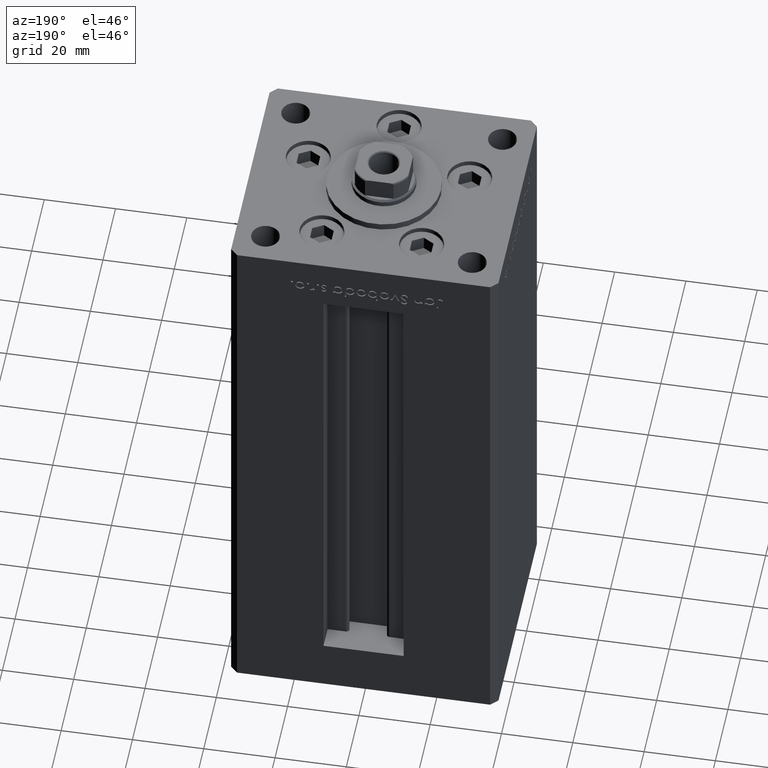
[diagram: clean part render]
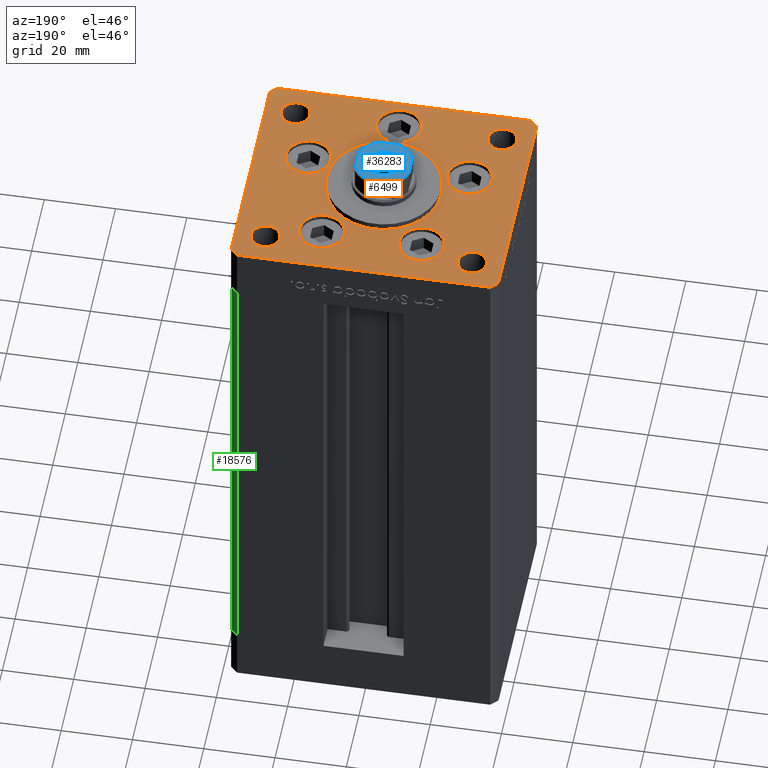
[diagram: same view with three faces highlighted in distinct colors, each labeled with its STEP entity id]
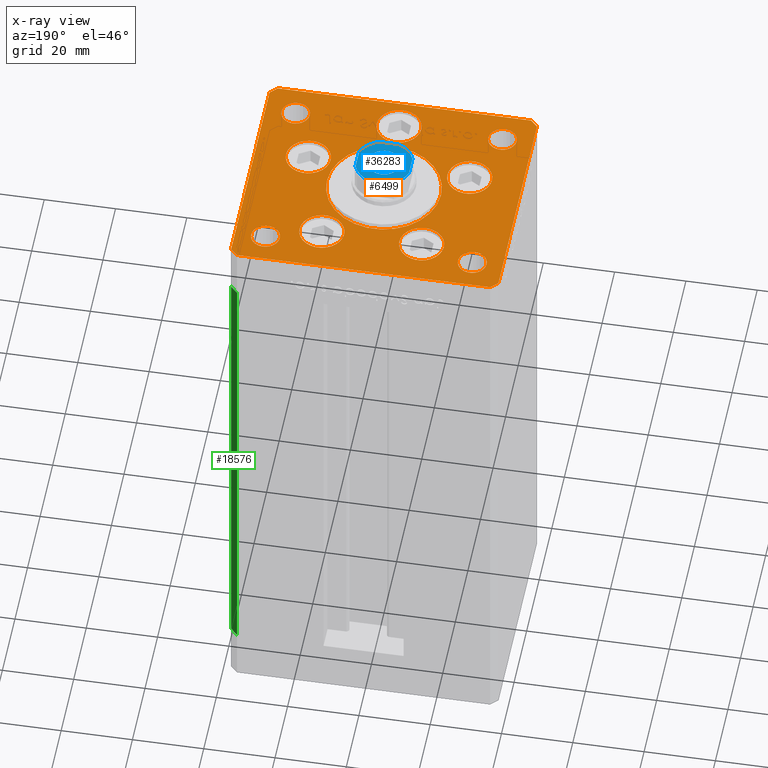
[diagram: x-ray of the same camera — body ghosted, the three highlighted faces saturated]
A machine part, auxiliary view with three faces highlighted in distinct colors.
The next image is the same camera in x-ray (body ghosted, the three faces saturated) — at least one of them is partly hidden behind the body in this view.
Their STEP definitions:

[orange] entity #6499 — the highlighted planar face has unit normal (0, 0, 1).
#27 = VERTEX_POINT ( 'NONE', #15111 ) ;
#93 = VECTOR ( 'NONE', #29604, 1000.000000000000000 ) ;
#391 = LINE ( 'NONE', #7535, #16685 ) ;
#488 = VERTEX_POINT ( 'NONE', #19643 ) ;
#591 = AXIS2_PLACEMENT_3D ( 'NONE', #2784, #10936, #23082 ) ;
#667 = VERTEX_POINT ( 'NONE', #9581 ) ;
#778 = DIRECTION ( 'NONE',  ( 1.000000000000000000, 0.000000000000000000, 0.000000000000000000 ) ) ;
#876 = CIRCLE ( 'NONE', #16044, 3.999999999999996447 ) ;
#1000 = VECTOR ( 'NONE', #35911, 1000.000000000000000 ) ;
#1281 = DIRECTION ( 'NONE',  ( -1.000000000000000000, 0.000000000000000000, 0.000000000000000000 ) ) ;
#1387 = CIRCLE ( 'NONE', #41013, 3.999999999999996447 ) ;
#1836 = CARTESIAN_POINT ( 'NONE',  ( 25.00000000000000355, -23.99999999999999645, 0.000000000000000000 ) ) ;
#2205 = EDGE_CURVE ( 'NONE', #25152, #48263, #49024, .T. ) ;
#2562 = AXIS2_PLACEMENT_3D ( 'NONE', #45302, #33430, #5196 ) ;
#2658 = CARTESIAN_POINT ( 'NONE',  ( -29.00000000000000000, -23.99999999999999645, 0.000000000000000000 ) ) ;
#2776 = FACE_BOUND ( 'NONE', #46664, .T. ) ;
#2784 = CARTESIAN_POINT ( 'NONE',  ( 0.000000000000000000, -24.00000000000001066, 0.000000000000000000 ) ) ;
#2817 = EDGE_CURVE ( 'NONE', #49685, #41457, #33553, .T. ) ;
#3083 = DIRECTION ( 'NONE',  ( 0.000000000000000000, 0.000000000000000000, 1.000000000000000000 ) ) ;
#3115 = EDGE_LOOP ( 'NONE', ( #9107, #40494 ) ) ;
#3261 = DIRECTION ( 'NONE',  ( 1.000000000000000000, 0.000000000000000000, 0.000000000000000000 ) ) ;
#3293 = DIRECTION ( 'NONE',  ( -0.000000000000000000, -0.000000000000000000, -1.000000000000000000 ) ) ;
#3425 = DIRECTION ( 'NONE',  ( 1.000000000000000000, 0.000000000000000000, 0.000000000000000000 ) ) ;
#3450 = CIRCLE ( 'NONE', #42213, 6.250000000000000000 ) ;
#3474 = EDGE_CURVE ( 'NONE', #37776, #27, #34388, .T. ) ;
#3550 = DIRECTION ( 'NONE',  ( 1.000000000000000000, 0.000000000000000000, 0.000000000000000000 ) ) ;
#3552 = ORIENTED_EDGE ( 'NONE', *, *, #36244, .T. ) ;
#4156 = AXIS2_PLACEMENT_3D ( 'NONE', #31755, #32529, #7993 ) ;
#4193 = DIRECTION ( 'NONE',  ( 0.000000000000000000, 0.000000000000000000, 1.000000000000000000 ) ) ;
#4274 = CARTESIAN_POINT ( 'NONE',  ( 29.00000000000000000, 24.00000000000000355, 0.000000000000000000 ) ) ;
#4307 = AXIS2_PLACEMENT_3D ( 'NONE', #35812, #3083, #6786 ) ;
#4780 = DIRECTION ( 'NONE',  ( 0.000000000000000000, 0.000000000000000000, 1.000000000000000000 ) ) ;
#5003 = EDGE_CURVE ( 'NONE', #18693, #26562, #391, .T. ) ;
#5165 = ORIENTED_EDGE ( 'NONE', *, *, #19984, .F. ) ;
#5196 = DIRECTION ( 'NONE',  ( 1.000000000000000000, 0.000000000000000000, 0.000000000000000000 ) ) ;
#5300 = VERTEX_POINT ( 'NONE', #21823 ) ;
#5362 = LINE ( 'NONE', #21448, #31968 ) ;
#5569 = CARTESIAN_POINT ( 'NONE',  ( -16.00000000000000355, -6.938893903907228378E-15, 0.000000000000000000 ) ) ;
#5627 = DIRECTION ( 'NONE',  ( -1.000000000000000000, 0.000000000000000000, 0.000000000000000000 ) ) ;
#5806 = DIRECTION ( 'NONE',  ( -1.000000000000000000, 0.000000000000000000, 0.000000000000000000 ) ) ;
#5921 = CARTESIAN_POINT ( 'NONE',  ( -33.00000000000000000, 24.00000000000000711, 0.000000000000000000 ) ) ;
#6499 = ADVANCED_FACE ( 'NONE', ( #11190, #27299, #6725, #2776, #27038, #39696, #31531, #51312, #51049, #31269, #14638 ), #14892, .T. ) ;
#6725 = FACE_BOUND ( 'NONE', #3115, .T. ) ;
#6786 = DIRECTION ( 'NONE',  ( 1.000000000000000000, 0.000000000000000000, 0.000000000000000000 ) ) ;
#6887 = AXIS2_PLACEMENT_3D ( 'NONE', #32038, #3293, #11702 ) ;
#6906 = EDGE_LOOP ( 'NONE', ( #44461, #35221 ) ) ;
#7213 = DIRECTION ( 'NONE',  ( 0.000000000000000000, 0.000000000000000000, 1.000000000000000000 ) ) ;
#7314 = DIRECTION ( 'NONE',  ( 1.000000000000000000, 0.000000000000000000, 0.000000000000000000 ) ) ;
#7535 = CARTESIAN_POINT ( 'NONE',  ( -35.50000000000000711, 32.49999999999997868, 0.000000000000000000 ) ) ;
#7617 = EDGE_CURVE ( 'NONE', #488, #49265, #5362, .T. ) ;
#7634 = CARTESIAN_POINT ( 'NONE',  ( 13.99106857963324124, 19.50000000000000000, 0.000000000000000000 ) ) ;
#7758 = LINE ( 'NONE', #23851, #9996 ) ;
#7969 = EDGE_CURVE ( 'NONE', #41457, #49685, #43759, .T. ) ;
#7993 = DIRECTION ( 'NONE',  ( 1.000000000000000000, 0.000000000000000000, 0.000000000000000000 ) ) ;
#8133 = EDGE_LOOP ( 'NONE', ( #48205, #34421 ) ) ;
#8680 = ORIENTED_EDGE ( 'NONE', *, *, #21080, .F. ) ;
#9107 = ORIENTED_EDGE ( 'NONE', *, *, #16175, .F. ) ;
#9152 = DIRECTION ( 'NONE',  ( 2.275047181608926165E-16, -1.000000000000000000, 0.000000000000000000 ) ) ;
#9581 = CARTESIAN_POINT ( 'NONE',  ( 7.741068579633241242, 19.50000000000000000, 0.000000000000000000 ) ) ;
#9707 = CARTESIAN_POINT ( 'NONE',  ( -32.99999999999999289, -23.99999999999999645, 0.000000000000000000 ) ) ;
#9977 = DIRECTION ( 'NONE',  ( 1.000000000000000000, 0.000000000000000000, 0.000000000000000000 ) ) ;
#9989 = DIRECTION ( 'NONE',  ( 0.000000000000000000, 0.000000000000000000, 1.000000000000000000 ) ) ;
#9996 = VECTOR ( 'NONE', #48132, 1000.000000000000000 ) ;
#10720 = AXIS2_PLACEMENT_3D ( 'NONE', #34034, #9989, #21354 ) ;
#10936 = DIRECTION ( 'NONE',  ( 0.000000000000000000, 0.000000000000000000, 1.000000000000000000 ) ) ;
#11010 = AXIS2_PLACEMENT_3D ( 'NONE', #50880, #43477, #7314 ) ;
#11190 = FACE_BOUND ( 'NONE', #20277, .T. ) ;
#11412 = EDGE_CURVE ( 'NONE', #37694, #39415, #24341, .T. ) ;
#11437 = CARTESIAN_POINT ( 'NONE',  ( 16.00000000000000355, -4.979459025271462852E-15, 0.000000000000000000 ) ) ;
#11607 = AXIS2_PLACEMENT_3D ( 'NONE', #4274, #4780, #48594 ) ;
#11702 = DIRECTION ( 'NONE',  ( -1.000000000000000000, 0.000000000000000000, 0.000000000000000000 ) ) ;
#11917 = CIRCLE ( 'NONE', #6887, 4.000000000000000000 ) ;
#12106 = VERTEX_POINT ( 'NONE', #23581 ) ;
#12597 = LINE ( 'NONE', #29218, #23535 ) ;
#12845 = CARTESIAN_POINT ( 'NONE',  ( -37.50000000000000000, -30.50000000000004263, 0.000000000000000000 ) ) ;
#12849 = CARTESIAN_POINT ( 'NONE',  ( 37.50000000000000711, 30.50000000000001421, 0.000000000000000000 ) ) ;
#13217 = VERTEX_POINT ( 'NONE', #35028 ) ;
#13486 = CARTESIAN_POINT ( 'NONE',  ( 37.50000000000000711, -30.49999999999992895, 0.000000000000000000 ) ) ;
#13973 = DIRECTION ( 'NONE',  ( 1.000000000000000000, 0.000000000000000000, 0.000000000000000000 ) ) ;
#14065 = CIRCLE ( 'NONE', #18285, 4.000000000000000000 ) ;
#14638 = FACE_BOUND ( 'NONE', #52078, .T. ) ;
#14777 = VERTEX_POINT ( 'NONE', #9707 ) ;
#14870 = AXIS2_PLACEMENT_3D ( 'NONE', #29756, #18378, #26306 ) ;
#14892 = PLANE ( 'NONE',  #28563 ) ;
#15111 = CARTESIAN_POINT ( 'NONE',  ( 33.00000000000000000, 24.00000000000000355, 0.000000000000000000 ) ) ;
#15240 = CIRCLE ( 'NONE', #27037, 6.250000000000000000 ) ;
#15308 = EDGE_CURVE ( 'NONE', #23943, #46512, #46386, .T. ) ;
#15712 = EDGE_CURVE ( 'NONE', #22485, #14777, #876, .T. ) ;
#16044 = AXIS2_PLACEMENT_3D ( 'NONE', #21900, #22167, #13973 ) ;
#16175 = EDGE_CURVE ( 'NONE', #13217, #667, #19433, .T. ) ;
#16685 = VECTOR ( 'NONE', #24405, 1000.000000000000000 ) ;
#16791 = VERTEX_POINT ( 'NONE', #51702 ) ;
#16836 = EDGE_CURVE ( 'NONE', #667, #13217, #3450, .T. ) ;
#16847 = VECTOR ( 'NONE', #20503, 1000.000000000000000 ) ;
#17855 = ORIENTED_EDGE ( 'NONE', *, *, #46179, .T. ) ;
#18285 = AXIS2_PLACEMENT_3D ( 'NONE', #41963, #38010, #5806 ) ;
#18352 = AXIS2_PLACEMENT_3D ( 'NONE', #39311, #35369, #51712 ) ;
#18376 = ORIENTED_EDGE ( 'NONE', *, *, #40264, .T. ) ;
#18378 = DIRECTION ( 'NONE',  ( 0.000000000000000000, 0.000000000000000000, 1.000000000000000000 ) ) ;
#18693 = VERTEX_POINT ( 'NONE', #20359 ) ;
#19043 = AXIS2_PLACEMENT_3D ( 'NONE', #25301, #44845, #778 ) ;
#19433 = CIRCLE ( 'NONE', #4307, 6.250000000000000000 ) ;
#19643 = CARTESIAN_POINT ( 'NONE',  ( 35.50000000000001421, -32.49999999999992184, 0.000000000000000000 ) ) ;
#19790 = LINE ( 'NONE', #24015, #1000 ) ;
#19984 = EDGE_CURVE ( 'NONE', #40217, #22862, #40978, .T. ) ;
#20277 = EDGE_LOOP ( 'NONE', ( #37951, #5165 ) ) ;
#20336 = EDGE_LOOP ( 'NONE', ( #46112, #48721 ) ) ;
#20359 = CARTESIAN_POINT ( 'NONE',  ( -35.50000000000000711, 32.49999999999997868, 0.000000000000000000 ) ) ;
#20503 = DIRECTION ( 'NONE',  ( 0.7071067811865512365, -0.7071067811865439090, 0.000000000000000000 ) ) ;
#21062 = DIRECTION ( 'NONE',  ( 1.000000000000000000, 0.000000000000000000, 0.000000000000000000 ) ) ;
#21080 = EDGE_CURVE ( 'NONE', #14777, #22485, #1387, .T. ) ;
#21334 = CARTESIAN_POINT ( 'NONE',  ( 29.00000000000000355, -23.99999999999999645, 0.000000000000000000 ) ) ;
#21354 = DIRECTION ( 'NONE',  ( 1.000000000000000000, 0.000000000000000000, 0.000000000000000000 ) ) ;
#21448 = CARTESIAN_POINT ( 'NONE',  ( 35.50000000000001421, -32.49999999999992184, 0.000000000000000000 ) ) ;
#21720 = EDGE_CURVE ( 'NONE', #40592, #16791, #44403, .T. ) ;
#21749 = ORIENTED_EDGE ( 'NONE', *, *, #38914, .T. ) ;
#21823 = CARTESIAN_POINT ( 'NONE',  ( -37.50000000000000000, -30.50000000000004263, 0.000000000000000000 ) ) ;
#21900 = CARTESIAN_POINT ( 'NONE',  ( -29.00000000000000000, -23.99999999999999645, 0.000000000000000000 ) ) ;
#22167 = DIRECTION ( 'NONE',  ( 0.000000000000000000, 0.000000000000000000, 1.000000000000000000 ) ) ;
#22485 = VERTEX_POINT ( 'NONE', #51328 ) ;
#22862 = VERTEX_POINT ( 'NONE', #5569 ) ;
#23082 = DIRECTION ( 'NONE',  ( 1.000000000000000000, 0.000000000000000000, 0.000000000000000000 ) ) ;
#23336 = ORIENTED_EDGE ( 'NONE', *, *, #25138, .F. ) ;
#23535 = VECTOR ( 'NONE', #9152, 1000.000000000000000 ) ;
#23581 = CARTESIAN_POINT ( 'NONE',  ( -16.37741699796953299, -8.000000000000000000, 0.000000000000000000 ) ) ;
#23851 = CARTESIAN_POINT ( 'NONE',  ( -35.50000000000001421, -32.50000000000000711, 0.000000000000000000 ) ) ;
#23893 = EDGE_CURVE ( 'NONE', #49544, #12106, #46139, .T. ) ;
#23943 = VERTEX_POINT ( 'NONE', #50374 ) ;
#24015 = CARTESIAN_POINT ( 'NONE',  ( 35.50000000000000000, 32.49999999999999289, 0.000000000000000000 ) ) ;
#24341 = CIRCLE ( 'NONE', #4156, 6.250000000000001776 ) ;
#24405 = DIRECTION ( 'NONE',  ( -0.7071067811865524577, -0.7071067811865426878, 0.000000000000000000 ) ) ;
#24722 = VERTEX_POINT ( 'NONE', #1836 ) ;
#24772 = ORIENTED_EDGE ( 'NONE', *, *, #42726, .F. ) ;
#25022 = DIRECTION ( 'NONE',  ( 0.000000000000000000, 0.000000000000000000, 1.000000000000000000 ) ) ;
#25097 = CARTESIAN_POINT ( 'NONE',  ( -20.24106857963324302, 19.50000000000000000, 0.000000000000000000 ) ) ;
#25138 = EDGE_CURVE ( 'NONE', #12106, #49544, #26661, .T. ) ;
#25152 = VERTEX_POINT ( 'NONE', #50062 ) ;
#25301 = CARTESIAN_POINT ( 'NONE',  ( 0.000000000000000000, -6.938893903907228378E-15, 0.000000000000000000 ) ) ;
#25656 = EDGE_CURVE ( 'NONE', #46512, #23943, #14065, .T. ) ;
#26174 = AXIS2_PLACEMENT_3D ( 'NONE', #21334, #30577, #1281 ) ;
#26306 = DIRECTION ( 'NONE',  ( 1.000000000000000000, 0.000000000000000000, 0.000000000000000000 ) ) ;
#26466 = DIRECTION ( 'NONE',  ( 0.7071067811865463515, 0.7071067811865487940, 0.000000000000000000 ) ) ;
#26521 = CARTESIAN_POINT ( 'NONE',  ( -13.99106857963324124, 19.50000000000000000, 0.000000000000000000 ) ) ;
#26562 = VERTEX_POINT ( 'NONE', #29373 ) ;
#26661 = CIRCLE ( 'NONE', #14870, 6.250000000000001776 ) ;
#26763 = VECTOR ( 'NONE', #28962, 1000.000000000000000 ) ;
#26912 = DIRECTION ( 'NONE',  ( 0.000000000000000000, 0.000000000000000000, 1.000000000000000000 ) ) ;
#27037 = AXIS2_PLACEMENT_3D ( 'NONE', #50769, #7213, #3261 ) ;
#27038 = FACE_BOUND ( 'NONE', #20336, .T. ) ;
#27299 = FACE_BOUND ( 'NONE', #8133, .T. ) ;
#27843 = CARTESIAN_POINT ( 'NONE',  ( 28.87741699796953654, -8.000000000000000000, 0.000000000000000000 ) ) ;
#28563 = AXIS2_PLACEMENT_3D ( 'NONE', #31006, #34970, #3550 ) ;
#28728 = CIRCLE ( 'NONE', #11010, 16.00000000000000355 ) ;
#28962 = DIRECTION ( 'NONE',  ( -0.7071067811865524577, 0.7071067811865426878, 0.000000000000000000 ) ) ;
#29218 = CARTESIAN_POINT ( 'NONE',  ( -37.50000000000001421, 30.50000000000000000, 0.000000000000000000 ) ) ;
#29373 = CARTESIAN_POINT ( 'NONE',  ( -37.50000000000001421, 30.50000000000000000, 0.000000000000000000 ) ) ;
#29604 = DIRECTION ( 'NONE',  ( 0.000000000000000000, 1.000000000000000000, 0.000000000000000000 ) ) ;
#29756 = CARTESIAN_POINT ( 'NONE',  ( -22.62741699796953299, -8.000000000000000000, 0.000000000000000000 ) ) ;
#29880 = CARTESIAN_POINT ( 'NONE',  ( 33.00000000000000000, -23.99999999999999645, 0.000000000000000000 ) ) ;
#30053 = ORIENTED_EDGE ( 'NONE', *, *, #25656, .T. ) ;
#30577 = DIRECTION ( 'NONE',  ( -0.000000000000000000, -0.000000000000000000, -1.000000000000000000 ) ) ;
#31006 = CARTESIAN_POINT ( 'NONE',  ( 0.000000000000000000, 0.000000000000000000, 0.000000000000000000 ) ) ;
#31269 = FACE_OUTER_BOUND ( 'NONE', #36883, .T. ) ;
#31403 = DIRECTION ( 'NONE',  ( 1.000000000000000000, 0.000000000000000000, 0.000000000000000000 ) ) ;
#31531 = FACE_BOUND ( 'NONE', #40140, .T. ) ;
#31586 = EDGE_CURVE ( 'NONE', #33174, #488, #7758, .T. ) ;
#31755 = CARTESIAN_POINT ( 'NONE',  ( 22.62741699796953299, -8.000000000000000000, 0.000000000000000000 ) ) ;
#31968 = VECTOR ( 'NONE', #26466, 1000.000000000000000 ) ;
#32038 = CARTESIAN_POINT ( 'NONE',  ( 29.00000000000000355, -23.99999999999999645, 0.000000000000000000 ) ) ;
#32529 = DIRECTION ( 'NONE',  ( 0.000000000000000000, 0.000000000000000000, 1.000000000000000000 ) ) ;
#32930 = EDGE_CURVE ( 'NONE', #26562, #5300, #12597, .T. ) ;
#33174 = VERTEX_POINT ( 'NONE', #51618 ) ;
#33430 = DIRECTION ( 'NONE',  ( 0.000000000000000000, 0.000000000000000000, 1.000000000000000000 ) ) ;
#33553 = CIRCLE ( 'NONE', #18352, 6.250000000000000000 ) ;
#33802 = CARTESIAN_POINT ( 'NONE',  ( 6.250000000000000000, -24.00000000000001066, 0.000000000000000000 ) ) ;
#34034 = CARTESIAN_POINT ( 'NONE',  ( -22.62741699796953299, -8.000000000000000000, 0.000000000000000000 ) ) ;
#34388 = CIRCLE ( 'NONE', #11607, 4.000000000000000000 ) ;
#34421 = ORIENTED_EDGE ( 'NONE', *, *, #7969, .F. ) ;
#34572 = ORIENTED_EDGE ( 'NONE', *, *, #2205, .T. ) ;
#34970 = DIRECTION ( 'NONE',  ( -0.000000000000000000, 0.000000000000000000, 1.000000000000000000 ) ) ;
#35028 = CARTESIAN_POINT ( 'NONE',  ( 20.24106857963324302, 19.50000000000000000, 0.000000000000000000 ) ) ;
#35221 = ORIENTED_EDGE ( 'NONE', *, *, #3474, .F. ) ;
#35369 = DIRECTION ( 'NONE',  ( 0.000000000000000000, 0.000000000000000000, 1.000000000000000000 ) ) ;
#35801 = ORIENTED_EDGE ( 'NONE', *, *, #23893, .F. ) ;
#35812 = CARTESIAN_POINT ( 'NONE',  ( 13.99106857963324124, 19.50000000000000000, 0.000000000000000000 ) ) ;
#35911 = DIRECTION ( 'NONE',  ( -1.000000000000000000, -1.954618001100627573E-16, 0.000000000000000000 ) ) ;
#36244 = EDGE_CURVE ( 'NONE', #5300, #33174, #37400, .T. ) ;
#36298 = EDGE_CURVE ( 'NONE', #27, #37776, #37109, .T. ) ;
#36314 = AXIS2_PLACEMENT_3D ( 'NONE', #46144, #42201, #9977 ) ;
#36574 = ORIENTED_EDGE ( 'NONE', *, *, #7617, .T. ) ;
#36883 = EDGE_LOOP ( 'NONE', ( #3552, #44262, #36574, #21749, #34572, #17855, #49747, #44725 ) ) ;
#37109 = CIRCLE ( 'NONE', #2562, 4.000000000000000000 ) ;
#37132 = AXIS2_PLACEMENT_3D ( 'NONE', #38109, #37327, #5627 ) ;
#37168 = ORIENTED_EDGE ( 'NONE', *, *, #38269, .T. ) ;
#37327 = DIRECTION ( 'NONE',  ( -0.000000000000000000, -0.000000000000000000, -1.000000000000000000 ) ) ;
#37400 = LINE ( 'NONE', #12845, #16847 ) ;
#37694 = VERTEX_POINT ( 'NONE', #50803 ) ;
#37776 = VERTEX_POINT ( 'NONE', #40222 ) ;
#37951 = ORIENTED_EDGE ( 'NONE', *, *, #38381, .F. ) ;
#38009 = CIRCLE ( 'NONE', #36314, 6.250000000000001776 ) ;
#38010 = DIRECTION ( 'NONE',  ( -0.000000000000000000, -0.000000000000000000, -1.000000000000000000 ) ) ;
#38109 = CARTESIAN_POINT ( 'NONE',  ( -29.00000000000000000, 24.00000000000000711, 0.000000000000000000 ) ) ;
#38269 = EDGE_CURVE ( 'NONE', #51767, #24722, #42190, .T. ) ;
#38381 = EDGE_CURVE ( 'NONE', #22862, #40217, #28728, .T. ) ;
#38577 = CARTESIAN_POINT ( 'NONE',  ( -28.87741699796953654, -8.000000000000000000, 0.000000000000000000 ) ) ;
#38601 = AXIS2_PLACEMENT_3D ( 'NONE', #26521, #25022, #21062 ) ;
#38914 = EDGE_CURVE ( 'NONE', #49265, #25152, #49384, .T. ) ;
#39311 = CARTESIAN_POINT ( 'NONE',  ( -13.99106857963324124, 19.50000000000000000, 0.000000000000000000 ) ) ;
#39415 = VERTEX_POINT ( 'NONE', #27843 ) ;
#39614 = EDGE_CURVE ( 'NONE', #16791, #40592, #15240, .T. ) ;
#39696 = FACE_BOUND ( 'NONE', #44211, .T. ) ;
#39998 = ORIENTED_EDGE ( 'NONE', *, *, #15308, .T. ) ;
#40140 = EDGE_LOOP ( 'NONE', ( #39998, #30053 ) ) ;
#40217 = VERTEX_POINT ( 'NONE', #11437 ) ;
#40222 = CARTESIAN_POINT ( 'NONE',  ( 24.99999999999999645, 24.00000000000000355, 0.000000000000000000 ) ) ;
#40264 = EDGE_CURVE ( 'NONE', #24722, #51767, #11917, .T. ) ;
#40382 = CARTESIAN_POINT ( 'NONE',  ( -7.741068579633241242, 19.50000000000000000, 0.000000000000000000 ) ) ;
#40494 = ORIENTED_EDGE ( 'NONE', *, *, #16836, .F. ) ;
#40592 = VERTEX_POINT ( 'NONE', #33802 ) ;
#40978 = CIRCLE ( 'NONE', #19043, 16.00000000000000355 ) ;
#41013 = AXIS2_PLACEMENT_3D ( 'NONE', #2658, #26912, #31403 ) ;
#41279 = CARTESIAN_POINT ( 'NONE',  ( 35.50000000000000000, 32.49999999999999289, 0.000000000000000000 ) ) ;
#41457 = VERTEX_POINT ( 'NONE', #25097 ) ;
#41963 = CARTESIAN_POINT ( 'NONE',  ( -29.00000000000000000, 24.00000000000000711, 0.000000000000000000 ) ) ;
#42190 = CIRCLE ( 'NONE', #26174, 4.000000000000000000 ) ;
#42201 = DIRECTION ( 'NONE',  ( 0.000000000000000000, 0.000000000000000000, 1.000000000000000000 ) ) ;
#42213 = AXIS2_PLACEMENT_3D ( 'NONE', #7634, #4193, #3425 ) ;
#42726 = EDGE_CURVE ( 'NONE', #39415, #37694, #38009, .T. ) ;
#43477 = DIRECTION ( 'NONE',  ( 0.000000000000000000, 0.000000000000000000, 1.000000000000000000 ) ) ;
#43759 = CIRCLE ( 'NONE', #38601, 6.250000000000000000 ) ;
#44211 = EDGE_LOOP ( 'NONE', ( #23336, #35801 ) ) ;
#44262 = ORIENTED_EDGE ( 'NONE', *, *, #31586, .T. ) ;
#44403 = CIRCLE ( 'NONE', #591, 6.250000000000000000 ) ;
#44461 = ORIENTED_EDGE ( 'NONE', *, *, #36298, .F. ) ;
#44725 = ORIENTED_EDGE ( 'NONE', *, *, #32930, .T. ) ;
#44845 = DIRECTION ( 'NONE',  ( 0.000000000000000000, 0.000000000000000000, 1.000000000000000000 ) ) ;
#45302 = CARTESIAN_POINT ( 'NONE',  ( 29.00000000000000000, 24.00000000000000355, 0.000000000000000000 ) ) ;
#46112 = ORIENTED_EDGE ( 'NONE', *, *, #21720, .F. ) ;
#46139 = CIRCLE ( 'NONE', #10720, 6.250000000000001776 ) ;
#46144 = CARTESIAN_POINT ( 'NONE',  ( 22.62741699796953299, -8.000000000000000000, 0.000000000000000000 ) ) ;
#46179 = EDGE_CURVE ( 'NONE', #48263, #18693, #19790, .T. ) ;
#46386 = CIRCLE ( 'NONE', #37132, 4.000000000000000000 ) ;
#46512 = VERTEX_POINT ( 'NONE', #5921 ) ;
#46664 = EDGE_LOOP ( 'NONE', ( #24772, #49015 ) ) ;
#46814 = CARTESIAN_POINT ( 'NONE',  ( 37.50000000000000711, -30.49999999999992895, 0.000000000000000000 ) ) ;
#48132 = DIRECTION ( 'NONE',  ( 1.000000000000000000, 1.172770800660376149E-15, 0.000000000000000000 ) ) ;
#48205 = ORIENTED_EDGE ( 'NONE', *, *, #2817, .F. ) ;
#48263 = VERTEX_POINT ( 'NONE', #41279 ) ;
#48594 = DIRECTION ( 'NONE',  ( 1.000000000000000000, 0.000000000000000000, 0.000000000000000000 ) ) ;
#48721 = ORIENTED_EDGE ( 'NONE', *, *, #39614, .F. ) ;
#49015 = ORIENTED_EDGE ( 'NONE', *, *, #11412, .F. ) ;
#49024 = LINE ( 'NONE', #12849, #26763 ) ;
#49265 = VERTEX_POINT ( 'NONE', #46814 ) ;
#49384 = LINE ( 'NONE', #13486, #93 ) ;
#49473 = ORIENTED_EDGE ( 'NONE', *, *, #15712, .F. ) ;
#49544 = VERTEX_POINT ( 'NONE', #38577 ) ;
#49685 = VERTEX_POINT ( 'NONE', #40382 ) ;
#49747 = ORIENTED_EDGE ( 'NONE', *, *, #5003, .T. ) ;
#50062 = CARTESIAN_POINT ( 'NONE',  ( 37.50000000000000711, 30.50000000000001421, 0.000000000000000000 ) ) ;
#50374 = CARTESIAN_POINT ( 'NONE',  ( -25.00000000000000000, 24.00000000000000711, 0.000000000000000000 ) ) ;
#50769 = CARTESIAN_POINT ( 'NONE',  ( 0.000000000000000000, -24.00000000000001066, 0.000000000000000000 ) ) ;
#50803 = CARTESIAN_POINT ( 'NONE',  ( 16.37741699796953299, -8.000000000000000000, 0.000000000000000000 ) ) ;
#50880 = CARTESIAN_POINT ( 'NONE',  ( 0.000000000000000000, -6.938893903907228378E-15, 0.000000000000000000 ) ) ;
#51049 = FACE_BOUND ( 'NONE', #51367, .T. ) ;
#51312 = FACE_BOUND ( 'NONE', #6906, .T. ) ;
#51328 = CARTESIAN_POINT ( 'NONE',  ( -25.00000000000000355, -23.99999999999999645, 0.000000000000000000 ) ) ;
#51367 = EDGE_LOOP ( 'NONE', ( #49473, #8680 ) ) ;
#51618 = CARTESIAN_POINT ( 'NONE',  ( -35.50000000000001421, -32.50000000000000711, 0.000000000000000000 ) ) ;
#51702 = CARTESIAN_POINT ( 'NONE',  ( -6.250000000000000000, -24.00000000000001066, 0.000000000000000000 ) ) ;
#51712 = DIRECTION ( 'NONE',  ( 1.000000000000000000, 0.000000000000000000, 0.000000000000000000 ) ) ;
#51767 = VERTEX_POINT ( 'NONE', #29880 ) ;
#52078 = EDGE_LOOP ( 'NONE', ( #37168, #18376 ) ) ;

[blue] entity #36283 — the highlighted planar face has unit normal (0, 0, 1).
#339 = ORIENTED_EDGE ( 'NONE', *, *, #12252, .T. ) ;
#343 = LINE ( 'NONE', #32280, #19288 ) ;
#797 = LINE ( 'NONE', #49094, #24958 ) ;
#1913 = EDGE_CURVE ( 'NONE', #6344, #25356, #17475, .T. ) ;
#2040 = ORIENTED_EDGE ( 'NONE', *, *, #2619, .T. ) ;
#2619 = EDGE_CURVE ( 'NONE', #34108, #22818, #15008, .T. ) ;
#4436 = EDGE_LOOP ( 'NONE', ( #39166, #6486 ) ) ;
#5557 = DIRECTION ( 'NONE',  ( 1.000000000000000000, 0.000000000000000000, 0.000000000000000000 ) ) ;
#6344 = VERTEX_POINT ( 'NONE', #40534 ) ;
#6486 = ORIENTED_EDGE ( 'NONE', *, *, #1913, .T. ) ;
#6773 = AXIS2_PLACEMENT_3D ( 'NONE', #8366, #45053, #8882 ) ;
#7735 = DIRECTION ( 'NONE',  ( 1.156482317317871478E-16, 1.000000000000000000, -0.000000000000000000 ) ) ;
#8366 = CARTESIAN_POINT ( 'NONE',  ( 0.000000000000000000, 0.000000000000000000, 148.0000000000000284 ) ) ;
#8882 = DIRECTION ( 'NONE',  ( 1.000000000000000000, 0.000000000000000000, 0.000000000000000000 ) ) ;
#9865 = CARTESIAN_POINT ( 'NONE',  ( 4.550000000000012257, 0.000000000000000000, 148.0000000000000284 ) ) ;
#9968 = EDGE_CURVE ( 'NONE', #22689, #19455, #34457, .T. ) ;
#10630 = DIRECTION ( 'NONE',  ( 1.000000000000000000, 0.000000000000000000, 0.000000000000000000 ) ) ;
#12091 = VERTEX_POINT ( 'NONE', #51038 ) ;
#12252 = EDGE_CURVE ( 'NONE', #22818, #24694, #343, .T. ) ;
#12363 = CARTESIAN_POINT ( 'NONE',  ( 0.000000000000000000, 0.000000000000000000, 148.0000000000000284 ) ) ;
#12587 = FACE_BOUND ( 'NONE', #4436, .T. ) ;
#12617 = CIRCLE ( 'NONE', #48872, 8.000000000000000000 ) ;
#12704 = CIRCLE ( 'NONE', #30434, 8.000000000000000000 ) ;
#13082 = CARTESIAN_POINT ( 'NONE',  ( 7.500000000000000888, -2.783882181415009427, 148.0000000000000284 ) ) ;
#14769 = EDGE_CURVE ( 'NONE', #24694, #33284, #12617, .T. ) ;
#14806 = EDGE_LOOP ( 'NONE', ( #339, #23578, #51245, #17195, #43224, #42917, #28480, #2040 ) ) ;
#15008 = CIRCLE ( 'NONE', #31029, 8.000000000000000000 ) ;
#16533 = PLANE ( 'NONE',  #6773 ) ;
#16991 = CIRCLE ( 'NONE', #37252, 4.550000000000012257 ) ;
#17195 = ORIENTED_EDGE ( 'NONE', *, *, #9968, .T. ) ;
#17475 = CIRCLE ( 'NONE', #41077, 4.550000000000012257 ) ;
#17974 = CARTESIAN_POINT ( 'NONE',  ( 0.000000000000000000, 0.000000000000000000, 148.0000000000000284 ) ) ;
#18291 = CARTESIAN_POINT ( 'NONE',  ( 0.000000000000000000, 0.000000000000000000, 148.0000000000000284 ) ) ;
#19288 = VECTOR ( 'NONE', #52069, 1000.000000000000000 ) ;
#19455 = VERTEX_POINT ( 'NONE', #13082 ) ;
#19935 = CARTESIAN_POINT ( 'NONE',  ( -2.783882181415013868, 7.499999999999999112, 148.0000000000000284 ) ) ;
#22689 = VERTEX_POINT ( 'NONE', #39390 ) ;
#22818 = VERTEX_POINT ( 'NONE', #40688 ) ;
#23173 = CARTESIAN_POINT ( 'NONE',  ( 0.000000000000000000, 0.000000000000000000, 148.0000000000000284 ) ) ;
#23578 = ORIENTED_EDGE ( 'NONE', *, *, #14769, .T. ) ;
#23856 = VECTOR ( 'NONE', #33971, 1000.000000000000000 ) ;
#24516 = DIRECTION ( 'NONE',  ( 1.000000000000000000, 0.000000000000000000, 0.000000000000000000 ) ) ;
#24580 = EDGE_CURVE ( 'NONE', #12091, #34108, #797, .T. ) ;
#24694 = VERTEX_POINT ( 'NONE', #30344 ) ;
#24933 = CARTESIAN_POINT ( 'NONE',  ( -2.783882181415010315, -7.500000000000000888, 148.0000000000000284 ) ) ;
#24958 = VECTOR ( 'NONE', #37482, 1000.000000000000000 ) ;
#25054 = DIRECTION ( 'NONE',  ( 0.000000000000000000, -0.000000000000000000, -1.000000000000000000 ) ) ;
#25354 = CARTESIAN_POINT ( 'NONE',  ( 0.000000000000000000, 0.000000000000000000, 148.0000000000000284 ) ) ;
#25356 = VERTEX_POINT ( 'NONE', #9865 ) ;
#28480 = ORIENTED_EDGE ( 'NONE', *, *, #24580, .T. ) ;
#29024 = CARTESIAN_POINT ( 'NONE',  ( 0.000000000000000000, 0.000000000000000000, 148.0000000000000284 ) ) ;
#30344 = CARTESIAN_POINT ( 'NONE',  ( -7.499999999999998224, -2.783882181415016088, 148.0000000000000284 ) ) ;
#30434 = AXIS2_PLACEMENT_3D ( 'NONE', #23173, #35322, #51409 ) ;
#31029 = AXIS2_PLACEMENT_3D ( 'NONE', #25354, #41461, #5557 ) ;
#32280 = CARTESIAN_POINT ( 'NONE',  ( -7.499999999999998224, 7.499999999999999112, 148.0000000000000284 ) ) ;
#32791 = LINE ( 'NONE', #44659, #51516 ) ;
#33230 = VERTEX_POINT ( 'NONE', #49465 ) ;
#33284 = VERTEX_POINT ( 'NONE', #24933 ) ;
#33971 = DIRECTION ( 'NONE',  ( 1.000000000000000000, 5.782411586589358625E-17, 0.000000000000000000 ) ) ;
#34108 = VERTEX_POINT ( 'NONE', #19935 ) ;
#34457 = CIRCLE ( 'NONE', #49586, 8.000000000000000000 ) ;
#34497 = CARTESIAN_POINT ( 'NONE',  ( -7.499999999999997335, -7.500000000000000888, 148.0000000000000284 ) ) ;
#35322 = DIRECTION ( 'NONE',  ( -0.000000000000000000, 0.000000000000000000, 1.000000000000000000 ) ) ;
#36283 = ADVANCED_FACE ( 'NONE', ( #12587, #49019 ), #16533, .T. ) ;
#37252 = AXIS2_PLACEMENT_3D ( 'NONE', #17974, #43044, #38573 ) ;
#37482 = DIRECTION ( 'NONE',  ( -1.000000000000000000, -5.782411586589357392E-17, -0.000000000000000000 ) ) ;
#38573 = DIRECTION ( 'NONE',  ( 1.000000000000000000, 0.000000000000000000, 0.000000000000000000 ) ) ;
#39166 = ORIENTED_EDGE ( 'NONE', *, *, #45984, .T. ) ;
#39390 = CARTESIAN_POINT ( 'NONE',  ( 2.783882181415008539, -7.500000000000000888, 148.0000000000000284 ) ) ;
#40534 = CARTESIAN_POINT ( 'NONE',  ( -4.550000000000012257, 5.572142936120472118E-16, 148.0000000000000284 ) ) ;
#40688 = CARTESIAN_POINT ( 'NONE',  ( -7.499999999999998224, 2.783882181415015644, 148.0000000000000284 ) ) ;
#41077 = AXIS2_PLACEMENT_3D ( 'NONE', #29024, #25054, #44326 ) ;
#41461 = DIRECTION ( 'NONE',  ( -0.000000000000000000, 0.000000000000000000, 1.000000000000000000 ) ) ;
#42917 = ORIENTED_EDGE ( 'NONE', *, *, #43130, .T. ) ;
#43044 = DIRECTION ( 'NONE',  ( 0.000000000000000000, -0.000000000000000000, -1.000000000000000000 ) ) ;
#43130 = EDGE_CURVE ( 'NONE', #33230, #12091, #12704, .T. ) ;
#43224 = ORIENTED_EDGE ( 'NONE', *, *, #43657, .T. ) ;
#43657 = EDGE_CURVE ( 'NONE', #19455, #33230, #32791, .T. ) ;
#44326 = DIRECTION ( 'NONE',  ( 1.000000000000000000, 0.000000000000000000, 0.000000000000000000 ) ) ;
#44576 = DIRECTION ( 'NONE',  ( -0.000000000000000000, 0.000000000000000000, 1.000000000000000000 ) ) ;
#44659 = CARTESIAN_POINT ( 'NONE',  ( 7.500000000000001776, 7.500000000000000000, 148.0000000000000284 ) ) ;
#45053 = DIRECTION ( 'NONE',  ( -0.000000000000000000, 0.000000000000000000, 1.000000000000000000 ) ) ;
#45984 = EDGE_CURVE ( 'NONE', #25356, #6344, #16991, .T. ) ;
#46806 = DIRECTION ( 'NONE',  ( -0.000000000000000000, 0.000000000000000000, 1.000000000000000000 ) ) ;
#48872 = AXIS2_PLACEMENT_3D ( 'NONE', #12363, #44576, #24516 ) ;
#49019 = FACE_OUTER_BOUND ( 'NONE', #14806, .T. ) ;
#49094 = CARTESIAN_POINT ( 'NONE',  ( -7.499999999999998224, 7.499999999999999112, 148.0000000000000284 ) ) ;
#49465 = CARTESIAN_POINT ( 'NONE',  ( 7.500000000000000888, 2.783882181415007206, 148.0000000000000284 ) ) ;
#49586 = AXIS2_PLACEMENT_3D ( 'NONE', #18291, #46806, #10630 ) ;
#50048 = EDGE_CURVE ( 'NONE', #33284, #22689, #50309, .T. ) ;
#50309 = LINE ( 'NONE', #34497, #23856 ) ;
#51038 = CARTESIAN_POINT ( 'NONE',  ( 2.783882181415012980, 7.500000000000000000, 148.0000000000000284 ) ) ;
#51245 = ORIENTED_EDGE ( 'NONE', *, *, #50048, .T. ) ;
#51409 = DIRECTION ( 'NONE',  ( 1.000000000000000000, 0.000000000000000000, 0.000000000000000000 ) ) ;
#51516 = VECTOR ( 'NONE', #7735, 1000.000000000000000 ) ;
#52069 = DIRECTION ( 'NONE',  ( 5.782411586589357392E-17, -1.000000000000000000, 0.000000000000000000 ) ) ;

[green] entity #18576 — the highlighted planar face has unit normal (0.7071, 0.7071, 0).
#344 = ORIENTED_EDGE ( 'NONE', *, *, #7741, .F. ) ;
#3073 = DIRECTION ( 'NONE',  ( -0.000000000000000000, -0.000000000000000000, -1.000000000000000000 ) ) ;
#4634 = DIRECTION ( 'NONE',  ( 0.7071067811865500152, -0.7071067811865451302, 0.000000000000000000 ) ) ;
#5356 = ORIENTED_EDGE ( 'NONE', *, *, #30220, .F. ) ;
#6126 = CARTESIAN_POINT ( 'NONE',  ( 35.50000000000000000, 32.49999999999999289, 0.000000000000000000 ) ) ;
#6590 = VECTOR ( 'NONE', #3073, 1000.000000000000000 ) ;
#7512 = VECTOR ( 'NONE', #42224, 1000.000000000000114 ) ;
#7741 = EDGE_CURVE ( 'NONE', #50347, #34074, #41439, .T. ) ;
#8677 = DIRECTION ( 'NONE',  ( -0.000000000000000000, -0.000000000000000000, -1.000000000000000000 ) ) ;
#10908 = VECTOR ( 'NONE', #8677, 1000.000000000000000 ) ;
#10978 = CARTESIAN_POINT ( 'NONE',  ( 35.50000000000000000, 32.49999999999999289, 136.0000000000000000 ) ) ;
#10981 = CARTESIAN_POINT ( 'NONE',  ( 37.50000000000000711, 30.50000000000000000, 0.000000000000000000 ) ) ;
#14233 = CARTESIAN_POINT ( 'NONE',  ( 35.50000000000000000, 32.49999999999999289, 0.000000000000000000 ) ) ;
#15108 = DIRECTION ( 'NONE',  ( 0.7071067811865451302, 0.7071067811865500152, -0.000000000000000000 ) ) ;
#18576 = ADVANCED_FACE ( 'NONE', ( #42574 ), #47308, .T. ) ;
#19584 = ORIENTED_EDGE ( 'NONE', *, *, #35161, .T. ) ;
#21081 = CARTESIAN_POINT ( 'NONE',  ( 37.50000000000000711, 30.50000000000000000, 136.0000000000000000 ) ) ;
#22497 = CARTESIAN_POINT ( 'NONE',  ( 35.50000000000000000, 32.49999999999999289, 136.0000000000000000 ) ) ;
#24486 = CARTESIAN_POINT ( 'NONE',  ( 35.50000000000000000, 32.49999999999999289, 136.0000000000000000 ) ) ;
#26230 = AXIS2_PLACEMENT_3D ( 'NONE', #22497, #15108, #34926 ) ;
#28650 = CARTESIAN_POINT ( 'NONE',  ( 35.50000000000000000, 32.49999999999999289, 136.0000000000000000 ) ) ;
#30220 = EDGE_CURVE ( 'NONE', #44892, #50347, #34229, .T. ) ;
#30425 = ORIENTED_EDGE ( 'NONE', *, *, #31230, .T. ) ;
#30955 = EDGE_LOOP ( 'NONE', ( #344, #5356, #30425, #19584 ) ) ;
#31230 = EDGE_CURVE ( 'NONE', #44892, #41994, #40792, .T. ) ;
#31859 = CARTESIAN_POINT ( 'NONE',  ( 37.50000000000000711, 30.50000000000000000, 136.0000000000000000 ) ) ;
#34074 = VERTEX_POINT ( 'NONE', #10981 ) ;
#34229 = LINE ( 'NONE', #10978, #6590 ) ;
#34926 = DIRECTION ( 'NONE',  ( -0.7071067811865500152, 0.7071067811865451302, 0.000000000000000000 ) ) ;
#35161 = EDGE_CURVE ( 'NONE', #41994, #34074, #44842, .T. ) ;
#40792 = LINE ( 'NONE', #28650, #41166 ) ;
#41166 = VECTOR ( 'NONE', #4634, 1000.000000000000114 ) ;
#41439 = LINE ( 'NONE', #14233, #7512 ) ;
#41994 = VERTEX_POINT ( 'NONE', #31859 ) ;
#42224 = DIRECTION ( 'NONE',  ( 0.7071067811865500152, -0.7071067811865451302, 0.000000000000000000 ) ) ;
#42574 = FACE_OUTER_BOUND ( 'NONE', #30955, .T. ) ;
#44842 = LINE ( 'NONE', #21081, #10908 ) ;
#44892 = VERTEX_POINT ( 'NONE', #24486 ) ;
#47308 = PLANE ( 'NONE',  #26230 ) ;
#50347 = VERTEX_POINT ( 'NONE', #6126 ) ;